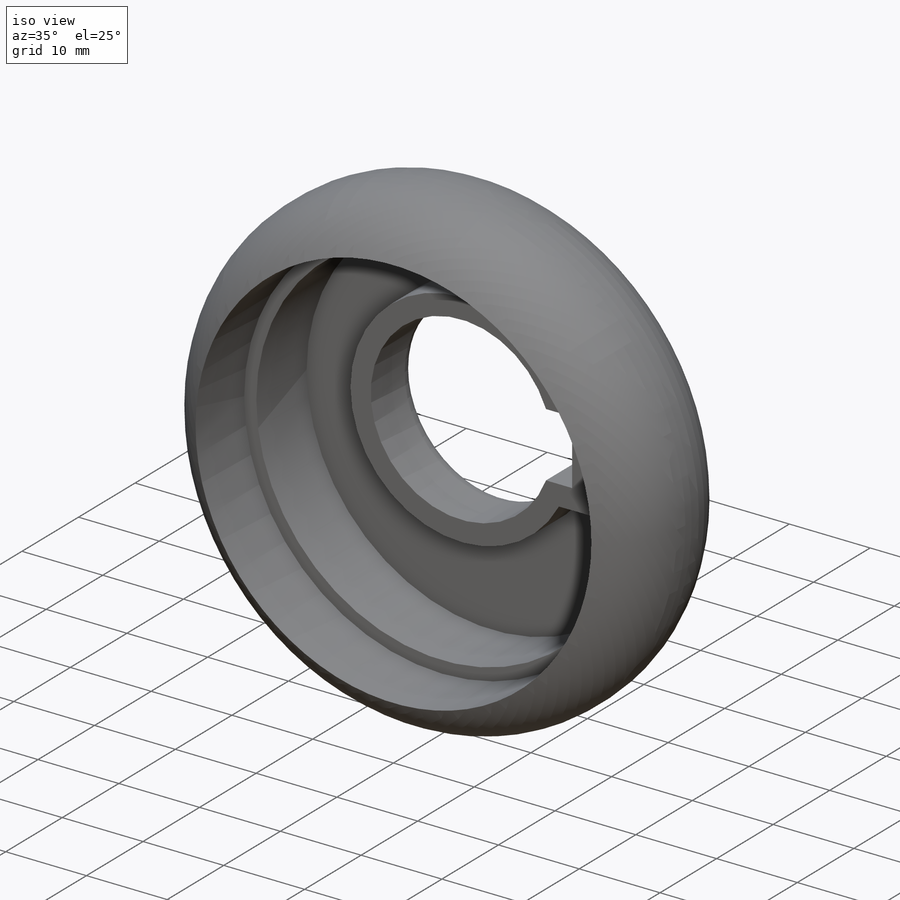
[diagram: iso view]
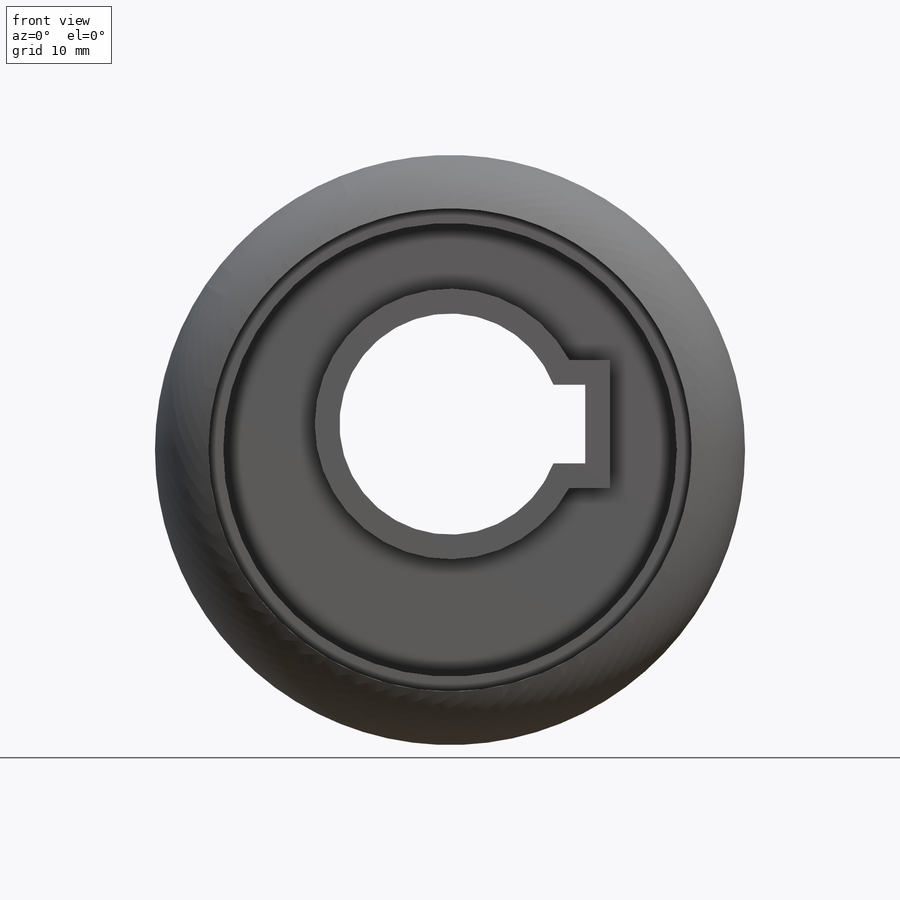
[diagram: front view]
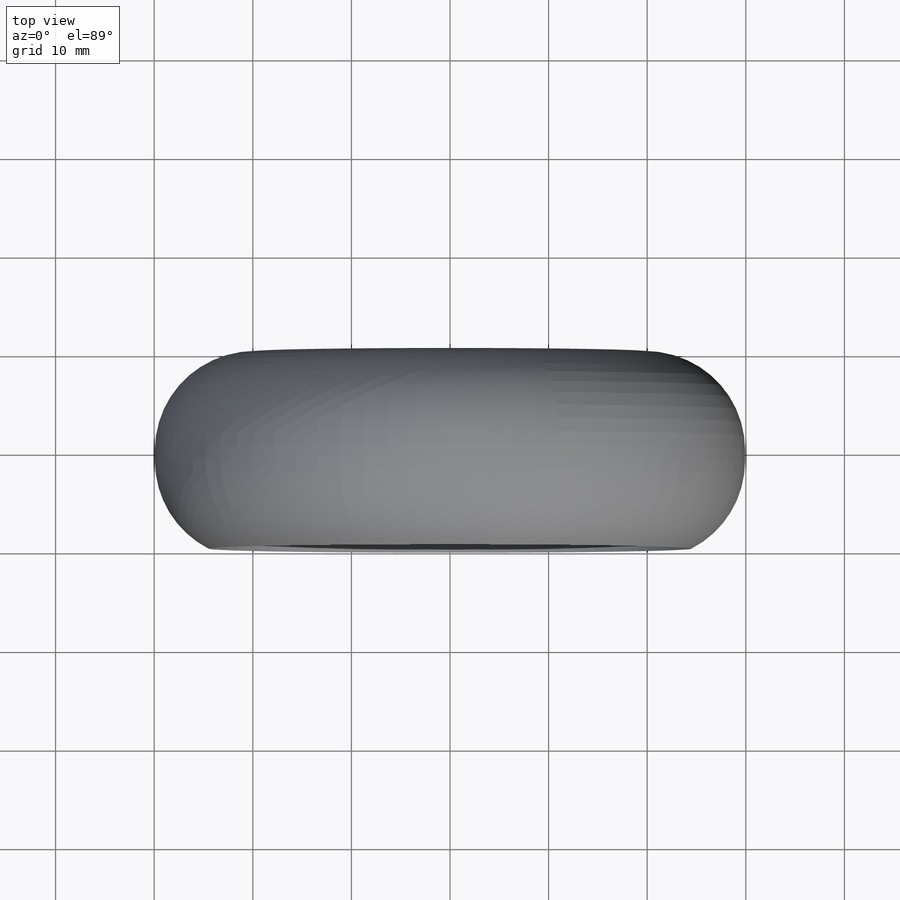
[diagram: top view]
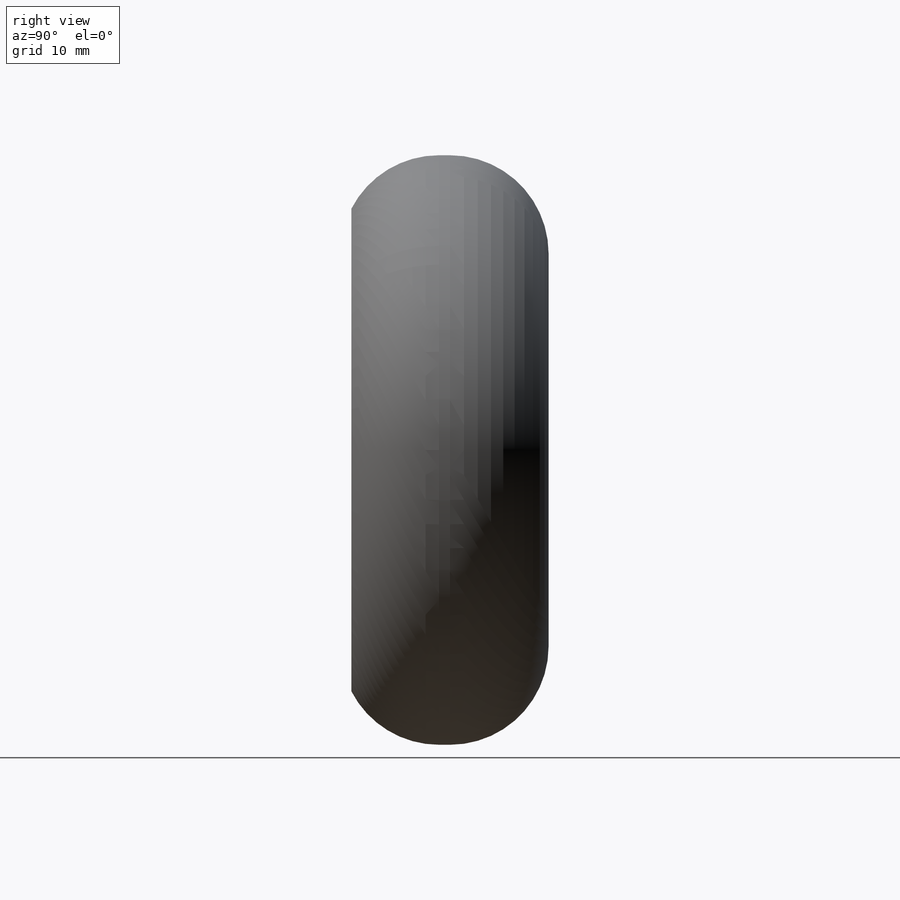
[diagram: right view]
SOLIDWORKS PART (.sldprt)
format: sldprt  version: not decoded by parser v0  size: 454,144 bytes
history: native  units: mm
features: sketch x6, extrude x4, fillet x3, cut_extrude x2, material x1 (+13 scaffold rows collapsed)
feature tree (29):
  scaffold x13  (default folders/planes/origin — collapsed)
  material  "Material <not specified>"
  sketch  "Sketch1"  dims[c1.D1=11.25mm c1.D2=11.25mm c2.D1=0.0mm c2.D2=30.0mm c2.D3=~55.015058mm c3.D2=26.57mm c3.D1=~21.304016mm]
  extrude  "Boss-Extrude1"  Depth=2.5mm
  sketch  "Sketch2"  dims[D1=2.5mm]
  extrude  "Boss-Extrude2"  Depth=5.5mm
  sketch  "Sketch3"  dims[D1=~22.788714mm]
  extrude  "Boss-Extrude3"  Depth=10.5mm
  fillet  "Fillet1"  Radius=10mm
  fillet  "Fillet2"  Radius=2mm
  sketch  "Sketch4"  dims[D1=24.0mm]
  cut_extrude  "Cut-Extrude1"  Depth=1.6mm
  sketch  "Sketch5"  dims[D1=5.8mm]
  extrude  "Boss-Extrude4"  Depth=7mm
  fillet  "Fillet3"  Radius=10mm
  sketch  "Sketch7"
  cut_extrude  "Cut-Extrude2"  Depth=1mm
decode coverage: 14 of 15 modeling features carry decoded parameters
note: ~ marks probable driven/reference dimensions
note: suppression state not decoded; provenance and decode notes live in map.json
